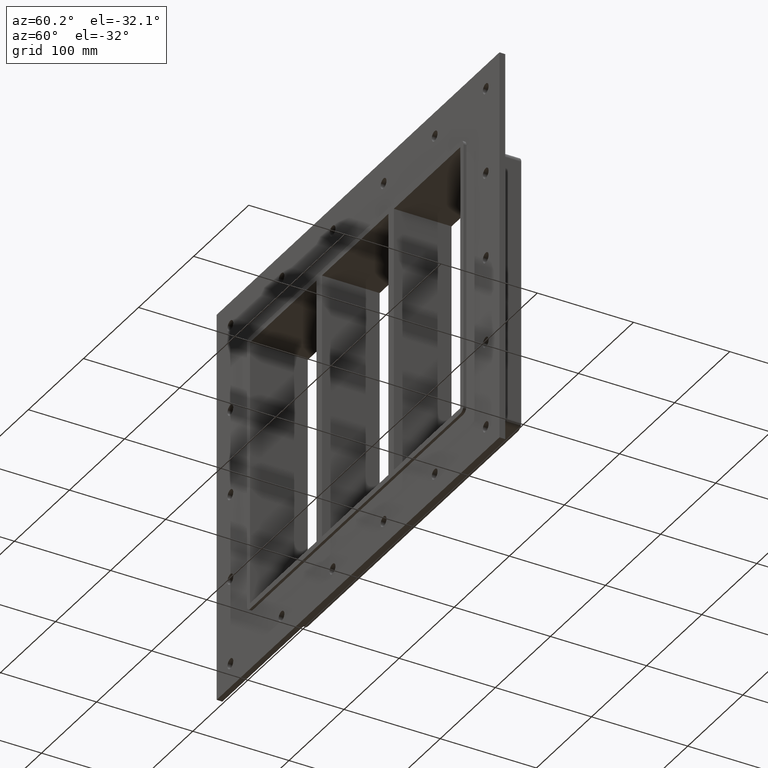
[diagram: clean part render]
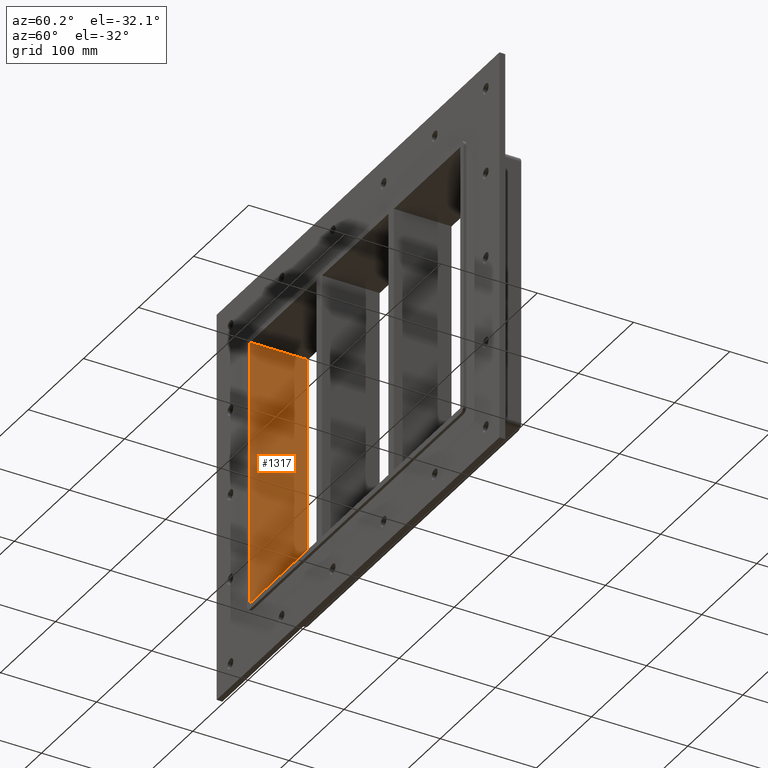
[diagram: same view with one face highlighted and labeled with its STEP entity id]
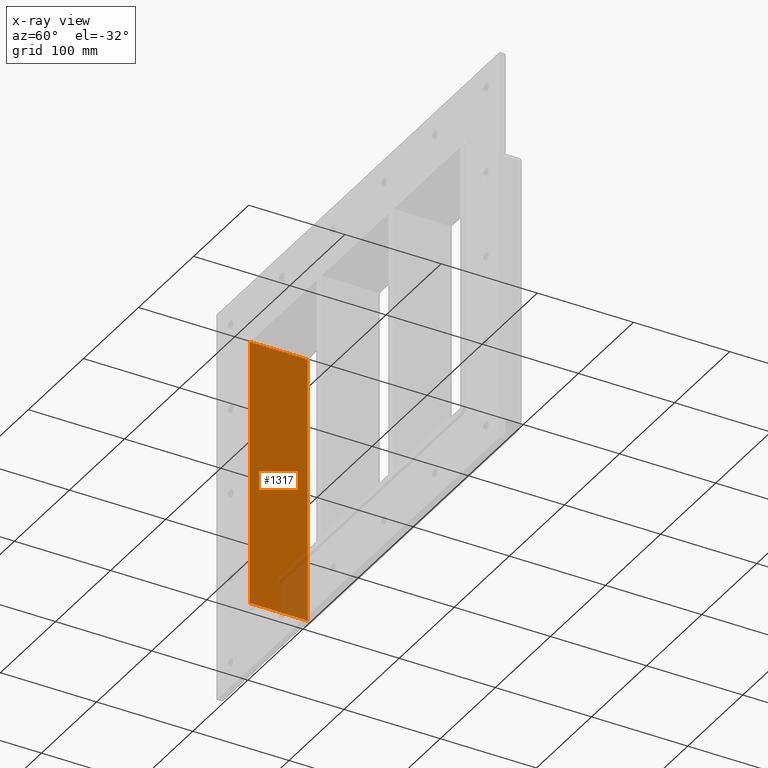
[diagram: x-ray of the same camera — body ghosted, the highlighted face saturated]
A machine part, auxiliary view. The second image highlights one B-rep face of the part: STEP entity #1317.
The next image is the same camera in x-ray: the body ghosted, the highlighted face saturated — about 10% of this face is hidden behind the body in this view.
In plain terms, the highlighted planar face has unit normal (-1, 0, 0).
Its self-contained STEP definition (entity closure, byte-faithful):
#844=CARTESIAN_POINT('',(-190.75000000000003,57.0,-139.0));
#845=VERTEX_POINT('',#844);
#852=CARTESIAN_POINT('',(-190.75000000000003,-3.0,-139.0));
#853=VERTEX_POINT('',#852);
#854=CARTESIAN_POINT('',(-190.75000000000003,-3.0,-139.0));
#855=DIRECTION('',(0.0,1.0,0.0));
#856=VECTOR('',#855,60.0);
#857=LINE('',#854,#856);
#858=EDGE_CURVE('',#853,#845,#857,.T.);
#875=CARTESIAN_POINT('',(-190.75000000000003,-3.0,139.0));
#876=VERTEX_POINT('',#875);
#883=CARTESIAN_POINT('',(-190.75000000000003,57.0,139.0));
#884=VERTEX_POINT('',#883);
#885=CARTESIAN_POINT('',(-190.75000000000003,-3.0,139.0));
#886=DIRECTION('',(0.0,1.0,0.0));
#887=VECTOR('',#886,60.0);
#888=LINE('',#885,#887);
#889=EDGE_CURVE('',#876,#884,#888,.T.);
#1296=CARTESIAN_POINT('',(-190.75000000000003,0.0,-139.0));
#1297=DIRECTION('',(-1.0,0.0,0.0));
#1298=DIRECTION('',(0.0,0.0,1.0));
#1299=AXIS2_PLACEMENT_3D('',#1296,#1297,#1298);
#1300=PLANE('',#1299);
#1301=ORIENTED_EDGE('',*,*,#858,.T.);
#1302=CARTESIAN_POINT('',(-190.75000000000003,57.0,138.99999999999997));
#1303=DIRECTION('',(0.0,0.0,-1.0));
#1304=VECTOR('',#1303,278.0);
#1305=LINE('',#1302,#1304);
#1306=EDGE_CURVE('',#884,#845,#1305,.T.);
#1307=ORIENTED_EDGE('',*,*,#1306,.F.);
#1308=ORIENTED_EDGE('',*,*,#889,.F.);
#1309=CARTESIAN_POINT('',(-190.75000000000003,-3.0,-139.0));
#1310=DIRECTION('',(0.0,0.0,1.0));
#1311=VECTOR('',#1310,278.0);
#1312=LINE('',#1309,#1311);
#1313=EDGE_CURVE('',#853,#876,#1312,.T.);
#1314=ORIENTED_EDGE('',*,*,#1313,.F.);
#1315=EDGE_LOOP('',(#1301,#1307,#1308,#1314));
#1316=FACE_OUTER_BOUND('',#1315,.T.);
#1317=ADVANCED_FACE('',(#1316),#1300,.F.);